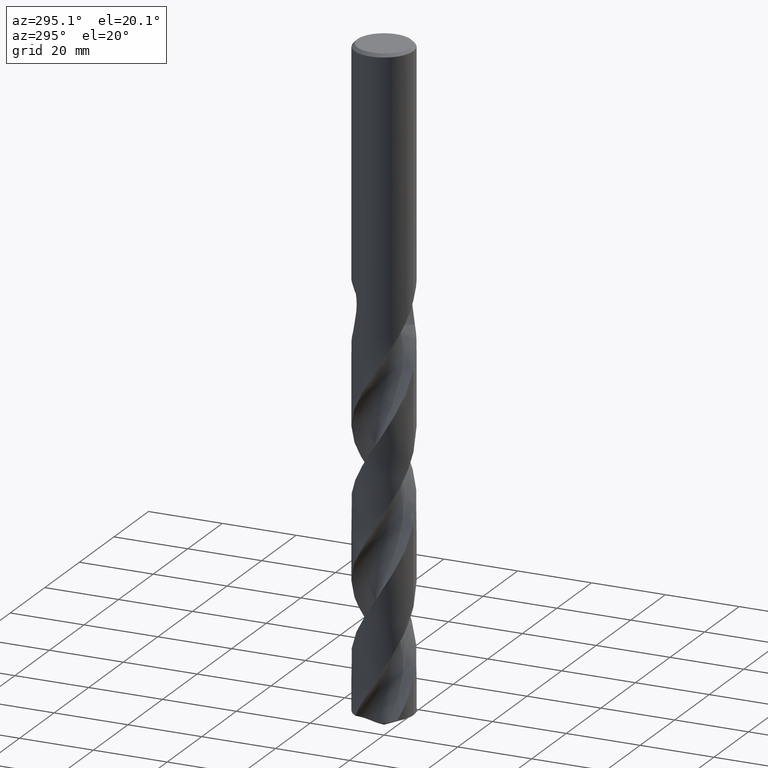
[diagram: clean part render]
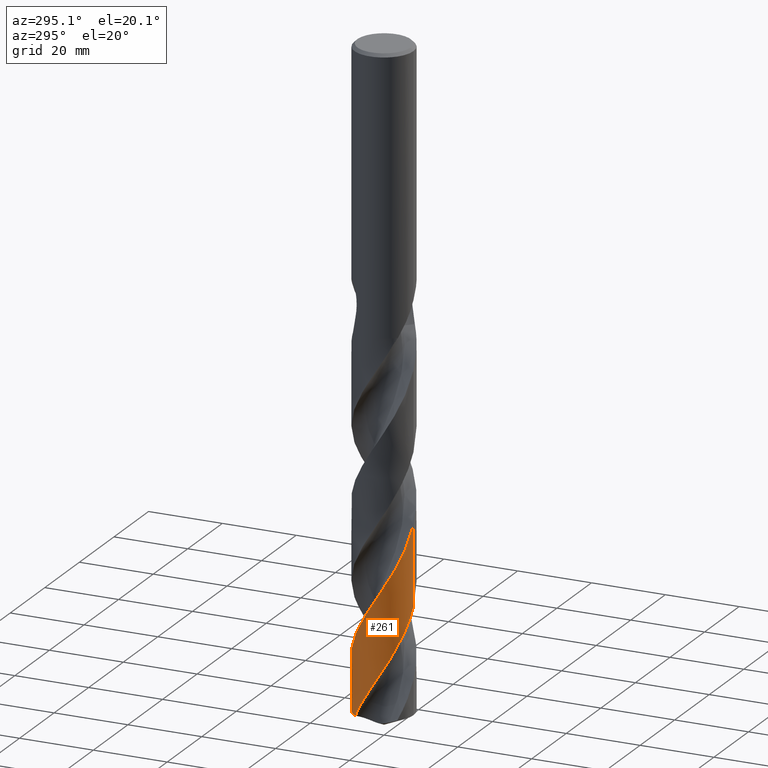
[diagram: same view with one face highlighted and labeled with its STEP entity id]
A machine part, auxiliary view. The second image highlights one B-rep face of the part: STEP entity #261.
In plain terms, the highlighted conical surface has half-angle 0 deg.
Its self-contained STEP definition (entity closure, byte-faithful):
#261=ADVANCED_FACE('',(#736),#737,.T.);
#393=EDGE_CURVE('',#589,#649,#881,.T.);
#409=EDGE_CURVE('',#411,#589,#897,.T.);
#411=VERTEX_POINT('',#899);
#443=EDGE_CURVE('',#531,#631,#937,.T.);
#531=VERTEX_POINT('',#1035);
#541=EDGE_CURVE('',#649,#631,#1045,.T.);
#589=VERTEX_POINT('',#1097);
#631=VERTEX_POINT('',#1143);
#649=VERTEX_POINT('',#1162);
#681=EDGE_CURVE('',#531,#411,#1195,.T.);
#736=FACE_OUTER_BOUND('',#1245,.T.);
#737=CONICAL_SURFACE('',#1246,7.99995,1.00030470546688E-006);
#881=B_SPLINE_CURVE_WITH_KNOTS('',3,(#3288,#3289,#3290,#3291,#3292,#3293,#3294,#3295,#3296,#3297,#3298,#3299,#3300,#3301,#3302,#3303,#3304,#3305,#3306,#3307,#3308,#3309,#3310,#3311,#3312,#3313,#3314,#3315,#3316,#3317,#3318,#3319,#3320,#3321,#3322,#3323,#3324,#3325,#3326,#3327,#3328,#3329,#3330,#3331,#3332,#3333,#3334,#3335,#3336,#3337,#3338,#3339,#3340,#3341,#3342,#3343,#3344,#3345,#3346,#3347,#3348,#3349,#3350,#3351,#3352,#3353,#3354,#3355,#3356,#3357,#3358,#3359,#3360,#3361,#3362,#3363,#3364,#3365,#3366,#3367,#3368,#3369,#3370,#3371,#3372,#3373,#3374,#3375,#3376,#3377,#3378,#3379,#3380,#3381,#3382,#3383,#3384,#3385,#3386,#3387,#3388,#3389,#3390,#3391,#3392,#3393,#3394,#3395,#3396,#3397,#3398,#3399,#3400,#3401,#3402,#3403,#3404,#3405,#3406,#3407,#3408,#3409,#3410,#3411,#3412,#3413,#3414,#3415,#3416,#3417,#3418,#3419,#3420,#3421,#3422,#3423,#3424,#3425,#3426,#3427,#3428,#3429,#3430,#3431,#3432,#3433),.UNSPECIFIED.,.F.,.F.,(4,2,2,2,2,2,2,2,2,2,2,2,2,2,2,2,2,2,2,2,2,2,2,2,2,2,2,2,2,2,2,2,2,2,2,2,2,2,2,2,2,2,2,2,2,2,2,2,2,2,2,2,2,2,2,2,2,2,2,2,2,2,2,2,2,2,2,2,2,2,2,2,4),(0.0,0.396364840597834,1.68892523961366,2.00397487602575,2.1742425136631,2.30588411094604,2.47757412938631,2.78553549143349,2.98803413635352,3.32603768513197,4.35719738007073,4.93410555683124,5.50924579318835,6.11947961004546,9.23315664726103,9.65617977478687,13.7257575628751,16.4285248284193,17.789595314988,19.1452468522162,21.5964048866649,22.9475144522274,25.4670053949181,26.8121110449903,29.4926416178732,30.742809039997,33.4326304224727,34.1393230377763,36.6636195351885,38.0086047290837,40.6893663213333,41.9262388540052,44.6148559040968,45.3214714577578,47.8135699318468,49.1605013118263,51.8394524356315,53.1019839168209,55.7894982480737,56.4960161626675,58.9435591855801,60.2930219316333,62.8899158650187,64.2292232008232,66.9140679961892,67.4941795347278,69.6317685147496,70.3122926289104,71.6538710153107,74.3369616644711,74.9301852221921,77.0689421989555,77.7493584764256,79.0910215117886,81.7723162622919,82.97638836974,85.6648514263268,86.3710873200704,88.9125110658411,90.2553315254756,92.935813022458,94.1469206618935,96.834032194234,97.5401804927809,99.713448236714,101.634320585559,103.314572297765,106.263971418341,107.371673948155,109.308051229289,110.762401101517,112.94674578634,115.130519179893),.UNSPECIFIED.);
#897=LINE('',#3458,#3459);
#899=CARTESIAN_POINT('',(-2.70645282503128E-011,-7.9999716481797,-145.926354753973));
#937=CIRCLE('',#4555,8.0);
#1035=CARTESIAN_POINT('',(-6.4524154961979,4.7293058966856,-174.26953873476));
#1045=LINE('',#5779,#5780);
#1097=CARTESIAN_POINT('',(-9.80991618918996E-014,-7.99995034341646,-124.628081171944));
#1143=CARTESIAN_POINT('',(-9.8207869551029E-016,8.0,-174.26953873476));
#1162=CARTESIAN_POINT('',(-3.06825930042677E-012,7.9999907689185,-165.041269161609));
#1195=B_SPLINE_CURVE_WITH_KNOTS('',3,(#6839,#6840,#6841,#6842,#6843,#6844,#6845,#6846,#6847,#6848,#6849,#6850,#6851,#6852,#6853,#6854,#6855,#6856,#6857,#6858,#6859,#6860,#6861,#6862,#6863,#6864,#6865,#6866,#6867,#6868,#6869,#6870,#6871,#6872,#6873,#6874,#6875,#6876,#6877,#6878,#6879,#6880,#6881,#6882,#6883,#6884,#6885,#6886,#6887,#6888,#6889,#6890,#6891,#6892,#6893,#6894,#6895,#6896,#6897,#6898,#6899,#6900,#6901,#6902,#6903,#6904,#6905,#6906,#6907,#6908,#6909,#6910,#6911,#6912,#6913,#6914,#6915,#6916,#6917,#6918,#6919,#6920,#6921,#6922,#6923,#6924,#6925,#6926,#6927,#6928,#6929,#6930,#6931,#6932,#6933,#6934,#6935,#6936,#6937,#6938,#6939,#6940,#6941,#6942,#6943,#6944,#6945,#6946,#6947,#6948,#6949,#6950,#6951,#6952,#6953,#6954,#6955,#6956,#6957,#6958,#6959,#6960,#6961,#6962,#6963,#6964,#6965,#6966,#6967,#6968,#6969,#6970,#6971,#6972,#6973,#6974,#6975,#6976,#6977,#6978,#6979,#6980,#6981,#6982,#6983,#6984,#6985,#6986,#6987,#6988,#6989,#6990,#6991,#6992,#6993,#6994,#6995,#6996,#6997,#6998,#6999,#7000),.UNSPECIFIED.,.F.,.F.,(4,2,2,2,2,2,2,2,2,2,2,2,2,2,2,2,2,2,2,2,2,2,2,2,2,2,2,2,2,2,2,2,2,2,2,2,2,2,2,2,2,2,2,2,2,2,2,2,2,2,2,2,2,2,2,2,2,2,2,2,2,2,2,2,2,2,2,2,2,2,2,2,2,2,2,2,2,2,2,2,4),(0.0,1.7928804095526,4.33577764154734,5.72819779734041,6.59756473720077,7.4990126416963,10.1356116777386,11.5219695780007,13.473585330596,16.2558233366235,17.6007947104445,18.9903484067911,22.1699242170683,22.5269562469336,24.3515203869435,25.4083810572719,26.7967607906734,28.7041226993901,30.5923968297187,32.5006477971172,34.4106013057577,36.3197873514657,37.2441278402441,38.182219475856,40.0905263295087,41.0466339770779,41.9974069286061,43.9054839664657,44.861462837001,45.8121741369763,47.7200681623169,48.6759527023367,49.6265864341083,51.5342260045914,52.4901038791614,53.4409043790239,55.3485068306283,56.3044163280776,57.2553822808476,60.5527032781388,60.6877681858279,63.4633790788872,64.8533225431071,67.974259484123,68.816009295985,70.6247352143017,71.6005611863002,72.6306931779227,74.2975409417892,75.4152108851354,76.5156138141808,78.1888051235842,79.2069193847389,80.3129897371733,81.9424534570058,83.0843643830351,84.0727421447228,85.7562186538742,86.895566636456,87.9093193007685,89.7598799733423,91.8051686815779,93.4524780534719,94.3559810912063,95.5143583292648,98.6361679856924,98.8824414295482,102.410273974125,102.850976694151,106.285672529917,107.403737737634,109.387619307382,113.445089093407,115.345089885514,118.600579246559,119.708191596565,120.193358442622,120.714649516391,121.58281716352,122.683654857767,125.610061957247),.UNSPECIFIED.);
#1245=EDGE_LOOP('',(#7300,#7301,#7302,#7303,#7304));
#1246=AXIS2_PLACEMENT_3D('',#7305,#7306,#7307);
#3288=CARTESIAN_POINT('',(-5.5605480230186,5.75140902507614,-74.305));
#3289=CARTESIAN_POINT('',(-5.51284781691195,5.79752645471941,-74.4192540755638));
#3290=CARTESIAN_POINT('',(-5.46442224984532,5.84319943961172,-74.5335302035352));
#3291=CARTESIAN_POINT('',(-5.25433974515089,6.03639263982219,-75.0199796951176));
#3292=CARTESIAN_POINT('',(-5.08874975585932,6.17699683264633,-75.3798626269448));
#3293=CARTESIAN_POINT('',(-4.86425763592033,6.35141922645094,-75.8356996323304));
#3294=CARTESIAN_POINT('',(-4.819737944388,6.38527475477279,-75.9247459392319));
#3295=CARTESIAN_POINT('',(-4.75002024882717,6.43713174651625,-76.0622744010234));
#3296=CARTESIAN_POINT('',(-4.7254152810813,6.45521618866054,-76.110454938026));
#3297=CARTESIAN_POINT('',(-4.68150528985642,6.48710246957077,-76.1958665082131));
#3298=CARTESIAN_POINT('',(-4.66227706741479,6.50093578213317,-76.2330769951563));
#3299=CARTESIAN_POINT('',(-4.61777154842537,6.53265452482587,-76.3188043609946));
#3300=CARTESIAN_POINT('',(-4.59245340434331,6.55047827945164,-76.3672787302629));
#3301=CARTESIAN_POINT('',(-4.5213531335843,6.59991610335669,-76.5027086077611));
#3302=CARTESIAN_POINT('',(-4.47536015287081,6.63119005043218,-76.5895117693253));
#3303=CARTESIAN_POINT('',(-4.39858919825866,6.68222937906475,-76.7335398647644));
#3304=CARTESIAN_POINT('',(-4.36787769453758,6.70234761748191,-76.7909655502494));
#3305=CARTESIAN_POINT('',(-4.2845780299867,6.75608438753336,-76.946612929858));
#3306=CARTESIAN_POINT('',(-4.23226538227756,6.78897386723107,-77.0441213643777));
#3307=CARTESIAN_POINT('',(-4.01956433510736,6.9193099110861,-77.439444687338));
#3308=CARTESIAN_POINT('',(-3.85718774900729,7.01105409192589,-77.7387368865781));
#3309=CARTESIAN_POINT('',(-3.60090061359212,7.14441882970971,-78.2048274177453));
#3310=CARTESIAN_POINT('',(-3.50810084628045,7.19043850583891,-78.3723029751783));
#3311=CARTESIAN_POINT('',(-3.32118977973493,7.27865479978392,-78.7064923299173));
#3312=CARTESIAN_POINT('',(-3.22695756759466,7.32092207501798,-78.8734327544639));
#3313=CARTESIAN_POINT('',(-3.03094605101573,7.40431428632354,-79.2171312306996));
#3314=CARTESIAN_POINT('',(-2.9290898249008,7.4451982896158,-79.3938164681144));
#3315=CARTESIAN_POINT('',(-2.30206640760382,7.6819953993218,-80.4723294329752));
#3316=CARTESIAN_POINT('',(-1.75848784573006,7.82434292216551,-81.3674522644345));
#3317=CARTESIAN_POINT('',(-1.12914716739342,7.92018648532981,-82.3919912871057));
#3318=CARTESIAN_POINT('',(-1.05372800219391,7.93057261521654,-82.5145793211223));
#3319=CARTESIAN_POINT('',(-0.251453887077054,8.02941336574412,-83.8160797957793));
#3320=CARTESIAN_POINT('',(0.484513294940825,8.01879677072578,-84.987768530346));
#3321=CARTESIAN_POINT('',(1.69030951988603,7.83443947891522,-86.94879013342));
#3322=CARTESIAN_POINT('',(2.16370772117057,7.71710817078398,-87.729768567483));
#3323=CARTESIAN_POINT('',(2.8548870582855,7.47718523190501,-88.9067021501081));
#3324=CARTESIAN_POINT('',(3.08260943591562,7.38622039649796,-89.3006724876664));
#3325=CARTESIAN_POINT('',(3.52817830041771,7.18402572376853,-90.087347497629));
#3326=CARTESIAN_POINT('',(3.74576750146053,7.07301126238282,-90.4794754689064));
#3327=CARTESIAN_POINT('',(4.34155015219171,6.73383078183534,-91.5818548578628));
#3328=CARTESIAN_POINT('',(4.7064709154868,6.48403708787201,-92.2908627550868));
#3329=CARTESIAN_POINT('',(5.23769965986219,6.05181218271989,-93.3919069104959));
#3330=CARTESIAN_POINT('',(5.41933805387508,5.88971015398983,-93.782779642125));
#3331=CARTESIAN_POINT('',(5.91767692601938,5.40237750393066,-94.9037281360042));
#3332=CARTESIAN_POINT('',(6.21454043297051,5.05808293709141,-95.6324233099367));
#3333=CARTESIAN_POINT('',(6.62269610265199,4.49414775986641,-96.7515454409717));
#3334=CARTESIAN_POINT('',(6.75574457961804,4.29154487294899,-97.1407082483713));
#3335=CARTESIAN_POINT('',(7.12576972712556,3.66813447027649,-98.3066282484597));
#3336=CARTESIAN_POINT('',(7.33412488619721,3.23149917150013,-99.0816685590586));
#3337=CARTESIAN_POINT('',(7.58007502379185,2.56748863230545,-100.219975098534));
#3338=CARTESIAN_POINT('',(7.64933188254764,2.35313109601115,-100.581810630839));
#3339=CARTESIAN_POINT('',(7.838790273572,1.66938095555622,-101.723000651023));
#3340=CARTESIAN_POINT('',(7.92549850370805,1.19169971790715,-102.50059183433));
#3341=CARTESIAN_POINT('',(7.97973122963073,0.582207500900456,-103.484220058905));
#3342=CARTESIAN_POINT('',(7.98798454219506,0.455163327214605,-103.688828188753));
#3343=CARTESIAN_POINT('',(8.01184386599806,-0.126272173612198,-104.62465713406));
#3344=CARTESIAN_POINT('',(7.99172834506315,-0.581368319932925,-105.354836133762));
#3345=CARTESIAN_POINT('',(7.90177679477969,-1.27261598888001,-106.475463897219));
#3346=CARTESIAN_POINT('',(7.85961390691713,-1.51131466971998,-106.864648815277));
#3347=CARTESIAN_POINT('',(7.70121255913486,-2.21887066111843,-108.030752584783));
#3348=CARTESIAN_POINT('',(7.55327268050854,-2.67960978240556,-108.805945009307));
#3349=CARTESIAN_POINT('',(7.27761742248002,-3.32940182763691,-109.940609924733));
#3350=CARTESIAN_POINT('',(7.18207127584831,-3.53078647194003,-110.298644253545));
#3351=CARTESIAN_POINT('',(6.85261855312981,-4.15633175722748,-111.435780831139));
#3352=CARTESIAN_POINT('',(6.58848835379117,-4.56349646436741,-112.213140264491));
#3353=CARTESIAN_POINT('',(6.21040211551231,-5.04441647812168,-113.196529122117));
#3354=CARTESIAN_POINT('',(6.12934950826698,-5.14259675986409,-113.401139527392));
#3355=CARTESIAN_POINT('',(5.75203196278143,-5.57805373141808,-114.327744517282));
#3356=CARTESIAN_POINT('',(5.42998652363585,-5.89202157045813,-115.048752348992));
#3357=CARTESIAN_POINT('',(4.89586935633983,-6.33154248635668,-116.160773564614));
#3358=CARTESIAN_POINT('',(4.70158082386449,-6.47711995758954,-116.550563945853));
#3359=CARTESIAN_POINT('',(4.10205013375241,-6.8851402141528,-117.716853750828));
#3360=CARTESIAN_POINT('',(3.67927784198388,-7.12004606907321,-118.491648111209));
#3361=CARTESIAN_POINT('',(3.02981101929043,-7.40750486915383,-119.633370876175));
#3362=CARTESIAN_POINT('',(2.81798285739872,-7.49064911620384,-119.998859929676));
#3363=CARTESIAN_POINT('',(2.14517492324367,-7.72215842684653,-121.1432594373));
#3364=CARTESIAN_POINT('',(1.67396235787786,-7.83782848966806,-121.920415608221));
#3365=CARTESIAN_POINT('',(1.06921276398937,-7.92919739893272,-122.903590275929));
#3366=CARTESIAN_POINT('',(0.942909303025033,-7.94520637705299,-123.108196254108));
#3367=CARTESIAN_POINT('',(0.377650746124789,-8.00318713921845,-124.021990212494));
#3368=CARTESIAN_POINT('',(-0.0640191179833295,-8.01184307474885,-124.73026421057));
#3369=CARTESIAN_POINT('',(-0.746876060367556,-7.96872220036742,-125.830273507539));
#3370=CARTESIAN_POINT('',(-0.988708395656078,-7.94234191055583,-126.220838304482));
#3371=CARTESIAN_POINT('',(-1.69125320654042,-7.83312240442534,-127.364238260098));
#3372=CARTESIAN_POINT('',(-2.14644652378052,-7.7208197569978,-128.115547076463));
#3373=CARTESIAN_POINT('',(-2.81763587876129,-7.4912258936736,-129.255908026719));
#3374=CARTESIAN_POINT('',(-3.0423171627897,-7.40282465980418,-129.643610065084));
#3375=CARTESIAN_POINT('',(-3.70427756060251,-7.10715135160559,-130.809632708372));
#3376=CARTESIAN_POINT('',(-4.12721615183981,-6.87019294019473,-131.586163031647));
#3377=CARTESIAN_POINT('',(-4.61241959367099,-6.53726615968028,-132.532080931517));
#3378=CARTESIAN_POINT('',(-4.69745188559768,-6.47643485346732,-132.700100029729));
#3379=CARTESIAN_POINT('',(-5.09009512335951,-6.1837411779182,-133.487553195692));
#3380=CARTESIAN_POINT('',(-5.38190294401509,-5.9315137803173,-134.106533039184));
#3381=CARTESIAN_POINT('',(-5.74114802016435,-5.5725782440052,-134.923113861064));
#3382=CARTESIAN_POINT('',(-5.82590173640787,-5.48391154391696,-135.120267135915));
#3383=CARTESIAN_POINT('',(-6.07160031572854,-5.2147403491905,-135.706157979092));
#3384=CARTESIAN_POINT('',(-6.22640303021664,-5.0288889746975,-136.09454536603));
#3385=CARTESIAN_POINT('',(-6.66479425010949,-4.45125080874031,-137.260838626565));
#3386=CARTESIAN_POINT('',(-6.92160595053328,-4.0403812796144,-138.036972380186));
#3387=CARTESIAN_POINT('',(-7.18800169415255,-3.51333180751955,-138.986280050313));
#3388=CARTESIAN_POINT('',(-7.23431356733813,-3.41695412858477,-139.158112487486));
#3389=CARTESIAN_POINT('',(-7.43862708247625,-2.96898158420285,-139.949772744019));
#3390=CARTESIAN_POINT('',(-7.57302385588722,-2.60717182071866,-140.569144472082));
#3391=CARTESIAN_POINT('',(-7.71510334331295,-2.11936109460925,-141.386105274527));
#3392=CARTESIAN_POINT('',(-7.74668581330064,-2.00084429573796,-141.583244913852));
#3393=CARTESIAN_POINT('',(-7.83241505896232,-1.64658612925978,-142.169181614819));
#3394=CARTESIAN_POINT('',(-7.87859975055856,-1.40911628867153,-142.557620945793));
#3395=CARTESIAN_POINT('',(-7.98461769210126,-0.691981743686248,-143.72352701911));
#3396=CARTESIAN_POINT('',(-8.01184561559109,-0.208497835186541,-144.499242268432));
#3397=CARTESIAN_POINT('',(-7.98780941590454,0.491480688406311,-145.625139636365));
#3398=CARTESIAN_POINT('',(-7.97153722714006,0.707966862421704,-145.973883876612));
#3399=CARTESIAN_POINT('',(-7.8905690739034,1.40469848026374,-147.102052729351));
#3400=CARTESIAN_POINT('',(-7.79103843679772,1.87994325252662,-147.879743425334));
#3401=CARTESIAN_POINT('',(-7.61178286628669,2.46506873978296,-148.863476802363));
#3402=CARTESIAN_POINT('',(-7.57159605515579,2.58587120614342,-149.068086583621));
#3403=CARTESIAN_POINT('',(-7.37364392898231,3.13668143258036,-150.009348377209));
#3404=CARTESIAN_POINT('',(-7.18198169341365,3.55368327473293,-150.744925909432));
#3405=CARTESIAN_POINT('',(-6.83606775177611,4.16250157936139,-151.87060447184));
#3406=CARTESIAN_POINT('',(-6.70701040711841,4.36740501949888,-152.259420673414));
#3407=CARTESIAN_POINT('',(-6.29315325945809,4.96278743162202,-153.425564636872));
#3408=CARTESIAN_POINT('',(-5.98200707634628,5.3337424730955,-154.201145403197));
#3409=CARTESIAN_POINT('',(-5.4843577454314,5.82830960428879,-155.328982821968));
#3410=CARTESIAN_POINT('',(-5.32327869893231,5.97578835393202,-155.67979691573));
#3411=CARTESIAN_POINT('',(-4.78614648365038,6.42861117201336,-156.809752692732));
#3412=CARTESIAN_POINT('',(-4.38823318625044,6.7065529639024,-157.587167459305));
#3413=CARTESIAN_POINT('',(-3.85698914160001,7.00996379142026,-158.570610825206));
#3414=CARTESIAN_POINT('',(-3.74496213614753,7.07044629717434,-158.77521730477));
#3415=CARTESIAN_POINT('',(-3.28251625536876,7.30604533677858,-159.60986019928));
#3416=CARTESIAN_POINT('',(-2.92085284004618,7.45800895020338,-160.239278684261));
#3417=CARTESIAN_POINT('',(-2.22124850484263,7.69322875288665,-161.425980161186));
#3418=CARTESIAN_POINT('',(-1.88623532070751,7.78214509955212,-161.981868886912));
#3419=CARTESIAN_POINT('',(-1.249424246747,7.9076212047122,-163.025782358404));
#3420=CARTESIAN_POINT('',(-0.949172947671134,7.94925505478011,-163.512570583937));
#3421=CARTESIAN_POINT('',(-0.117278488256363,8.01678345222706,-164.854531121311));
#3422=CARTESIAN_POINT('',(0.415619417169219,8.0068552022578,-165.707220387097));
#3423=CARTESIAN_POINT('',(1.14177893042831,7.92061139705464,-166.88331144336));
#3424=CARTESIAN_POINT('',(1.33911792231433,7.88964734240412,-167.204289721662));
#3425=CARTESIAN_POINT('',(1.87774918741248,7.78433313126007,-168.086623432143));
#3426=CARTESIAN_POINT('',(2.2155598766015,7.69499825401991,-168.64707377919));
#3427=CARTESIAN_POINT('',(2.7948808486107,7.50048470959911,-169.630047499685));
#3428=CARTESIAN_POINT('',(3.03913812119612,7.40488377973382,-170.051469147777));
#3429=CARTESIAN_POINT('',(3.63746345286898,7.13609526658479,-171.106253253156));
#3430=CARTESIAN_POINT('',(3.98424705065929,6.94843771401531,-171.73837938456));
#3431=CARTESIAN_POINT('',(4.64726439092515,6.52364040080876,-173.004589277817));
#3432=CARTESIAN_POINT('',(4.96267511094691,6.28704652638102,-173.636631483741));
#3433=CARTESIAN_POINT('',(5.25943870811467,6.02812611642998,-174.26953873476));
#3458=CARTESIAN_POINT('',(9.77285347573744E-016,-7.99995,-124.28476936738));
#3459=VECTOR('',#7486,1.0);
#4555=AXIS2_PLACEMENT_3D('',#7562,#7563,#7564);
#5779=CARTESIAN_POINT('',(-9.82072572478521E-016,7.99995,-124.28476936738));
#5780=VECTOR('',#7681,1.0);
#6839=CARTESIAN_POINT('',(-6.4524154961979,4.72930589668565,-174.26953873476));
#6840=CARTESIAN_POINT('',(-6.63857041863724,4.47532508064233,-173.761603811942));
#6841=CARTESIAN_POINT('',(-6.80980544239701,4.21025218977331,-173.255241473093));
#6842=CARTESIAN_POINT('',(-7.18541308029793,3.54546828464516,-172.028269945193));
#6843=CARTESIAN_POINT('',(-7.37258425977538,3.13776901615773,-171.308115584889));
#6844=CARTESIAN_POINT('',(-7.60796488647452,2.48575223764849,-170.194302971584));
#6845=CARTESIAN_POINT('',(-7.68059903080731,2.25133275056324,-169.800780377114));
#6846=CARTESIAN_POINT('',(-7.78090613530985,1.86571014241642,-169.160668168505));
#6847=CARTESIAN_POINT('',(-7.8151716707496,1.71650831260108,-168.914711966161));
#6848=CARTESIAN_POINT('',(-7.87617741334314,1.41098859624665,-168.413295720054));
#6849=CARTESIAN_POINT('',(-7.90258241174022,1.25468528917399,-168.157721059347));
#6850=CARTESIAN_POINT('',(-7.98796699428941,0.638240379032378,-167.155957503574));
#6851=CARTESIAN_POINT('',(-8.01154790170841,0.174091680577892,-166.413587700705));
#6852=CARTESIAN_POINT('',(-7.98591180556131,-0.533482804088868,-165.274993551227));
#6853=CARTESIAN_POINT('',(-7.96593922546634,-0.776614192849637,-164.881865259053));
#6854=CARTESIAN_POINT('',(-7.89118765457622,-1.35898453579667,-163.937207532181));
#6855=CARTESIAN_POINT('',(-7.82559376669853,-1.6964588626977,-163.386584570434));
#6856=CARTESIAN_POINT('',(-7.61422557309086,-2.50266314117331,-162.04747268465));
#6857=CARTESIAN_POINT('',(-7.44677153268315,-2.96402014289604,-161.259206662341));
#6858=CARTESIAN_POINT('',(-7.13723194344891,-3.6215722445846,-160.091802655908));
#6859=CARTESIAN_POINT('',(-7.02691849465857,-3.83121626976431,-159.711877243702));
#6860=CARTESIAN_POINT('',(-6.78413567854724,-4.24677156484144,-158.938261058278));
#6861=CARTESIAN_POINT('',(-6.65124198267586,-4.45200647224777,-158.544432725189));
#6862=CARTESIAN_POINT('',(-6.18444008645743,-5.10535595319773,-157.252104696152));
#6863=CARTESIAN_POINT('',(-5.81302670318157,-5.52450393214919,-156.35981391672));
#6864=CARTESIAN_POINT('',(-5.35492386911336,-5.94377136246692,-155.359446214394));
#6865=CARTESIAN_POINT('',(-5.30821441638343,-5.98552312790528,-155.258440086932));
#6866=CARTESIAN_POINT('',(-5.01957781510421,-6.23748373796837,-154.641253703406));
#6867=CARTESIAN_POINT('',(-4.7654977634877,-6.43372468189387,-154.126509564069));
#6868=CARTESIAN_POINT('',(-4.34623572823622,-6.71896518319144,-153.312053440395));
#6869=CARTESIAN_POINT('',(-4.18892146452295,-6.81814712321595,-153.013543255241));
#6870=CARTESIAN_POINT('',(-3.81745336195221,-7.03464960500958,-152.322149114813));
#6871=CARTESIAN_POINT('',(-3.60117142137116,-7.1477784281501,-151.928838475713));
#6872=CARTESIAN_POINT('',(-3.07622765523373,-7.39248290223452,-150.99703575622));
#6873=CARTESIAN_POINT('',(-2.76368576498217,-7.51493397555332,-150.459354546307));
#6874=CARTESIAN_POINT('',(-2.12793208418652,-7.71892723697851,-149.386704411618));
#6875=CARTESIAN_POINT('',(-1.80584643947678,-7.8005457380323,-148.85210380678));
#6876=CARTESIAN_POINT('',(-1.15051572643004,-7.92390253546738,-147.779246106891));
#6877=CARTESIAN_POINT('',(-0.817400012742384,-7.96517380781082,-147.241581589599));
#6878=CARTESIAN_POINT('',(-0.147296197132975,-8.00566200241155,-146.163101272384));
#6879=CARTESIAN_POINT('',(0.188624862929499,-8.00477211108056,-145.622646858779));
#6880=CARTESIAN_POINT('',(0.857619879792826,-7.96092560217964,-144.543945637529));
#6881=CARTESIAN_POINT('',(1.19050165537546,-7.91800321981662,-144.006291222104));
#6882=CARTESIAN_POINT('',(1.67935171628144,-7.82340487249938,-143.206349384892));
#6883=CARTESIAN_POINT('',(1.83773374653844,-7.78771740618551,-142.945509070835));
#6884=CARTESIAN_POINT('',(2.15422483083969,-7.70622496994508,-142.419434578148));
#6885=CARTESIAN_POINT('',(2.31226096677938,-7.66029109340461,-142.15411885295));
#6886=CARTESIAN_POINT('',(2.78759204771857,-7.50606744698631,-141.34992915171));
#6887=CARTESIAN_POINT('',(3.09963964509579,-7.38269706466021,-140.812372901266));
#6888=CARTESIAN_POINT('',(3.55530663647078,-7.16850688636946,-140.003536283418));
#6889=CARTESIAN_POINT('',(3.70500916950668,-7.092286104622,-139.733688430626));
#6890=CARTESIAN_POINT('',(3.99837834105384,-6.9311084035268,-139.194951900722));
#6891=CARTESIAN_POINT('',(4.14202915668886,-6.84623267741558,-138.925991241463));
#6892=CARTESIAN_POINT('',(4.56602610020683,-6.57746809552822,-138.118179143552));
#6893=CARTESIAN_POINT('',(4.83762629905768,-6.38038524204218,-137.580616976167));
#6894=CARTESIAN_POINT('',(5.22576385037023,-6.05962370095862,-136.771775759811));
#6895=CARTESIAN_POINT('',(5.35182440752461,-5.94857475297279,-136.501928804747));
#6896=CARTESIAN_POINT('',(5.59593509182516,-5.71950682441532,-135.963175508299));
#6897=CARTESIAN_POINT('',(5.7139844492586,-5.60157456608332,-135.694193836403));
#6898=CARTESIAN_POINT('',(6.05784868373965,-5.23584686685115,-134.886374729444));
#6899=CARTESIAN_POINT('',(6.27192046455473,-4.97743892556544,-134.348813845286));
#6900=CARTESIAN_POINT('',(6.56812132790559,-4.57027084681092,-133.539972413402));
#6901=CARTESIAN_POINT('',(6.66261401319426,-4.43137522977303,-133.270125705204));
#6902=CARTESIAN_POINT('',(6.84210946114564,-4.14882306227718,-132.731367406547));
#6903=CARTESIAN_POINT('',(6.92712915610661,-4.00525643837296,-132.462376471488));
#6904=CARTESIAN_POINT('',(7.16924412823817,-3.56559551741392,-131.654596960365));
#6905=CARTESIAN_POINT('',(7.31234136697848,-3.26212706672726,-131.117074365165));
#6906=CARTESIAN_POINT('',(7.49802140894909,-2.79413991066404,-130.308274083229));
#6907=CARTESIAN_POINT('',(7.55502449754807,-2.63610860344517,-130.038420302733));
#6908=CARTESIAN_POINT('',(7.65866543681896,-2.31775761134006,-129.499603747541));
#6909=CARTESIAN_POINT('',(7.70533810661433,-2.15752639387577,-129.230559453485));
#6910=CARTESIAN_POINT('',(7.83056224551921,-1.67145785341349,-128.422748628647));
#6911=CARTESIAN_POINT('',(7.8937283744944,-1.34194397562855,-127.885241178914));
#6912=CARTESIAN_POINT('',(7.95724423208301,-0.842472138348684,-127.076459742747));
#6913=CARTESIAN_POINT('',(7.97317367390454,-0.675217602443317,-126.806603842406));
#6914=CARTESIAN_POINT('',(7.99442360776987,-0.341041224471452,-126.267748100017));
#6915=CARTESIAN_POINT('',(7.99979781648315,-0.174202139910114,-125.998664602021));
#6916=CARTESIAN_POINT('',(8.00046958704962,0.571776996287027,-124.798136221882));
#6917=CARTESIAN_POINT('',(7.93812441116224,1.14882621335697,-123.873951082857));
#6918=CARTESIAN_POINT('',(7.80916996503476,1.73683720843976,-122.903786035493));
#6919=CARTESIAN_POINT('',(7.80399149526715,1.75995952935463,-122.86559506514));
#6920=CARTESIAN_POINT('',(7.68996769348383,2.25865868935263,-122.041342886707));
#6921=CARTESIAN_POINT('',(7.53789730630992,2.72359347453147,-121.26013173211));
#6922=CARTESIAN_POINT('',(7.24715416205475,3.39672632106236,-120.081493183006));
#6923=CARTESIAN_POINT('',(7.13995950601905,3.61659498720574,-119.687505930195));
#6924=CARTESIAN_POINT('',(6.76037025179611,4.31245404541852,-118.411544839667));
#6925=CARTESIAN_POINT('',(6.44901628961825,4.76547900083219,-117.53541351545));
#6926=CARTESIAN_POINT('',(5.99806122593229,5.29567708230454,-116.41461553715));
#6927=CARTESIAN_POINT('',(5.89908124131165,5.40572232508155,-116.176070864681));
#6928=CARTESIAN_POINT('',(5.57779279590762,5.74356242837947,-115.425911622284));
#6929=CARTESIAN_POINT('',(5.34486093754853,5.96095413703244,-114.915363323676));
#6930=CARTESIAN_POINT('',(4.96701755089058,6.27354022339508,-114.127669471455));
#6931=CARTESIAN_POINT('',(4.83119675166194,6.37871662975085,-113.851774027962));
#6932=CARTESIAN_POINT('',(4.54545400724742,6.58564319616557,-113.284039692543));
#6933=CARTESIAN_POINT('',(4.39522833951349,6.68683983073988,-112.992074915745));
#6934=CARTESIAN_POINT('',(3.9929601174485,6.93839018795398,-112.228682044829));
#6935=CARTESIAN_POINT('',(3.73583535295753,7.08016441610938,-111.757961498091));
#6936=CARTESIAN_POINT('',(3.29396429963707,7.29297880941475,-110.970209981392));
#6937=CARTESIAN_POINT('',(3.11363448156512,7.37176416102826,-110.654255079447));
#6938=CARTESIAN_POINT('',(2.75062796817447,7.51468412070268,-110.02641314444));
#6939=CARTESIAN_POINT('',(2.56806106240682,7.57901854276836,-109.714393536949));
#6940=CARTESIAN_POINT('',(2.10216911336865,7.72441083754088,-108.92917600985));
#6941=CARTESIAN_POINT('',(1.81633943231751,7.79658483515737,-108.456583943672));
#6942=CARTESIAN_POINT('',(1.35095538503453,7.88707936282855,-107.695032969297));
#6943=CARTESIAN_POINT('',(1.17391401022439,7.91536095893314,-107.407113558114));
#6944=CARTESIAN_POINT('',(0.803112055517552,7.96189660200488,-106.805738554743));
#6945=CARTESIAN_POINT('',(0.609281743921475,7.97907128064231,-106.492075870653));
#6946=CARTESIAN_POINT('',(0.128528089891135,8.00403719453502,-105.717537377207));
#6947=CARTESIAN_POINT('',(-0.158596515193364,8.00350969873823,-105.2571911487));
#6948=CARTESIAN_POINT('',(-0.646131718690613,7.97633224347509,-104.472907546363));
#6949=CARTESIAN_POINT('',(-0.846376660068561,7.95756790228041,-104.150009502682));
#6950=CARTESIAN_POINT('',(-1.21795859012985,7.90858290146348,-103.54681529063));
#6951=CARTESIAN_POINT('',(-1.38948853328896,7.88025671483635,-103.266578807331));
#6952=CARTESIAN_POINT('',(-1.85070996587643,7.78855021468953,-102.509920478264));
#6953=CARTESIAN_POINT('',(-2.13805655199221,7.71463355345075,-102.03428933878));
#6954=CARTESIAN_POINT('',(-2.61218422597889,7.56410190375885,-101.235313240979));
#6955=CARTESIAN_POINT('',(-2.80105789784122,7.49620545410686,-100.9130843691));
#6956=CARTESIAN_POINT('',(-3.15253228259398,7.35473851134738,-100.303326534024));
#6957=CARTESIAN_POINT('',(-3.3156675180102,7.28265112130587,-100.015835244048));
#6958=CARTESIAN_POINT('',(-3.76979279371578,7.063539044225,-99.2045269199096));
#6959=CARTESIAN_POINT('',(-4.05442257369056,6.90411499017673,-98.6818254596943));
#6960=CARTESIAN_POINT('',(-4.63179632274776,6.5326221342898,-97.5788841869769));
#6961=CARTESIAN_POINT('',(-4.92119263994708,6.31744966931993,-96.9987973311361));
#6962=CARTESIAN_POINT('',(-5.41535476954508,5.89548250390279,-95.953378465197));
#6963=CARTESIAN_POINT('',(-5.62552784255972,5.69529599302765,-95.4880572164894));
#6964=CARTESIAN_POINT('',(-5.93358020745162,5.36811781982324,-94.7662381549238));
#6965=CARTESIAN_POINT('',(-6.03915267271517,5.2490609031626,-94.5106878634704));
#6966=CARTESIAN_POINT('',(-6.27170237910802,4.97051516401792,-93.9269874147525));
#6967=CARTESIAN_POINT('',(-6.3962337839431,4.80920219328924,-93.5985247392945));
#6968=CARTESIAN_POINT('',(-6.83324893529458,4.19606735466739,-92.386933538506));
#6969=CARTESIAN_POINT('',(-7.10497456723178,3.71739785167386,-91.5096865113122));
#6970=CARTESIAN_POINT('',(-7.34286503569261,3.17535300242936,-90.556161816121));
#6971=CARTESIAN_POINT('',(-7.35992382041871,3.13561031917719,-90.4864485617044));
#6972=CARTESIAN_POINT('',(-7.6164801888209,2.52426949337948,-89.4183404504035));
#6973=CARTESIAN_POINT('',(-7.78901785514183,1.92707293144636,-88.4298106646708));
#6974=CARTESIAN_POINT('',(-7.9036575414141,1.23967525886109,-87.3069553581908));
#6975=CARTESIAN_POINT('',(-7.91527168442013,1.16321641526116,-87.1822193553655));
#6976=CARTESIAN_POINT('',(-8.00772210734315,0.488817892262135,-86.0854744365566));
#6977=CARTESIAN_POINT('',(-8.02184181819738,-0.116567974055598,-85.1217577571958));
#6978=CARTESIAN_POINT('',(-7.94994544142435,-0.914107629633218,-83.8344554434296));
#6979=CARTESIAN_POINT('',(-7.92507395330155,-1.10920796412005,-83.5184130762292));
#6980=CARTESIAN_POINT('',(-7.83629910003859,-1.64695318019698,-82.6406381128018));
#6981=CARTESIAN_POINT('',(-7.75726715188944,-1.98615558731667,-82.076607329213));
#6982=CARTESIAN_POINT('',(-7.44949427633066,-3.0019470632346,-80.3678871085855));
#6983=CARTESIAN_POINT('',(-7.19821881223729,-3.50710137196628,-79.4893604201565));
#6984=CARTESIAN_POINT('',(-6.96067095971351,-3.94624956937979,-78.6992603611902));
#6985=CARTESIAN_POINT('',(-6.88185627328442,-4.08195480134471,-78.4467794826772));
#6986=CARTESIAN_POINT('',(-6.66123573270044,-4.43805887546277,-77.7550954326048));
#6987=CARTESIAN_POINT('',(-6.51636659662567,-4.64639948950573,-77.3136355272122));
#6988=CARTESIAN_POINT('',(-6.32896804068842,-4.89375203030188,-76.7552527258904));
#6989=CARTESIAN_POINT('',(-6.2927079704529,-4.94043712260033,-76.6458412147882));
#6990=CARTESIAN_POINT('',(-6.21393478224338,-5.03854318087198,-76.4298946632841));
#6991=CARTESIAN_POINT('',(-6.18933947192358,-5.06873532549944,-76.364518208174));
#6992=CARTESIAN_POINT('',(-6.13698203523856,-5.13202615021502,-76.2296398734898));
#6993=CARTESIAN_POINT('',(-6.10914706410849,-5.16514170071457,-76.1602618438746));
#6994=CARTESIAN_POINT('',(-6.03291880602083,-5.25430201086684,-75.9764975291432));
#6995=CARTESIAN_POINT('',(-5.98313445877476,-5.31095531736604,-75.8629499334771));
#6996=CARTESIAN_POINT('',(-5.86806349835555,-5.43814743009969,-75.6133105294979));
#6997=CARTESIAN_POINT('',(-5.80061562045648,-5.51013340226963,-75.4758770143853));
#6998=CARTESIAN_POINT('',(-5.54160318206076,-5.77596594922857,-74.9799059663235));
#6999=CARTESIAN_POINT('',(-5.33187442963924,-5.9717555518514,-74.6368380912663));
#7000=CARTESIAN_POINT('',(-5.09767772697037,-6.16539389511924,-74.305));
#7300=ORIENTED_EDGE('',*,*,#541,.T.);
#7301=ORIENTED_EDGE('',*,*,#443,.F.);
#7302=ORIENTED_EDGE('',*,*,#681,.T.);
#7303=ORIENTED_EDGE('',*,*,#409,.T.);
#7304=ORIENTED_EDGE('',*,*,#393,.T.);
#7305=CARTESIAN_POINT('',(0.0,0.0,-124.28476936738));
#7306=DIRECTION('',(0.0,-0.0,-1.0));
#7307=DIRECTION('',(0.0,1.0,0.0));
#7486=DIRECTION('',(-1.22497949807295E-022,1.00030470546671E-006,0.9999999999995));
#7562=CARTESIAN_POINT('',(0.0,0.0,-174.26953873476));
#7563=DIRECTION('',(0.0,0.0,-1.0));
#7564=DIRECTION('',(0.0,1.0,0.0));
#7681=DIRECTION('',(-1.22497949807295E-022,1.00030470546671E-006,-0.9999999999995));